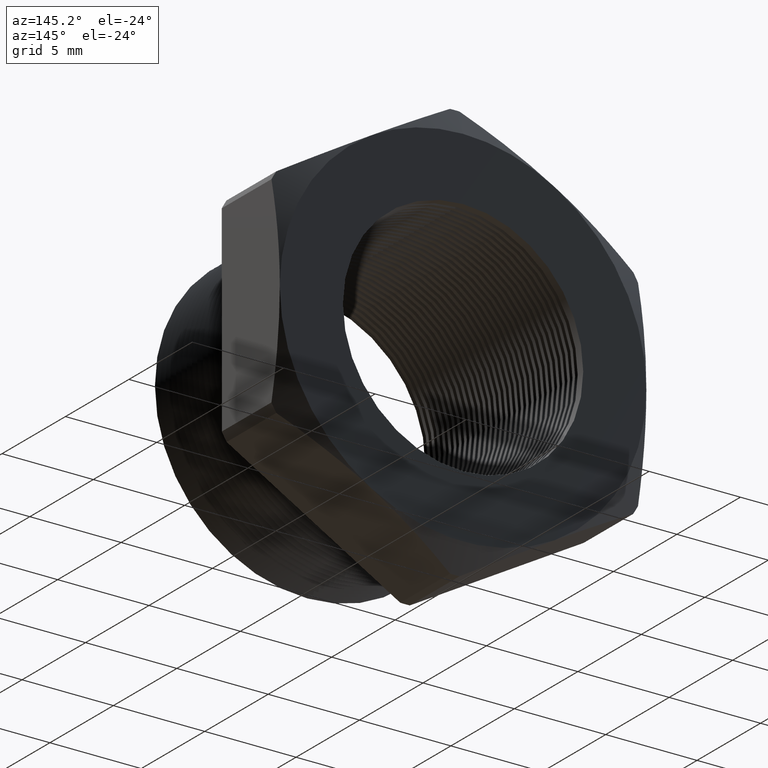
[diagram: clean part render]
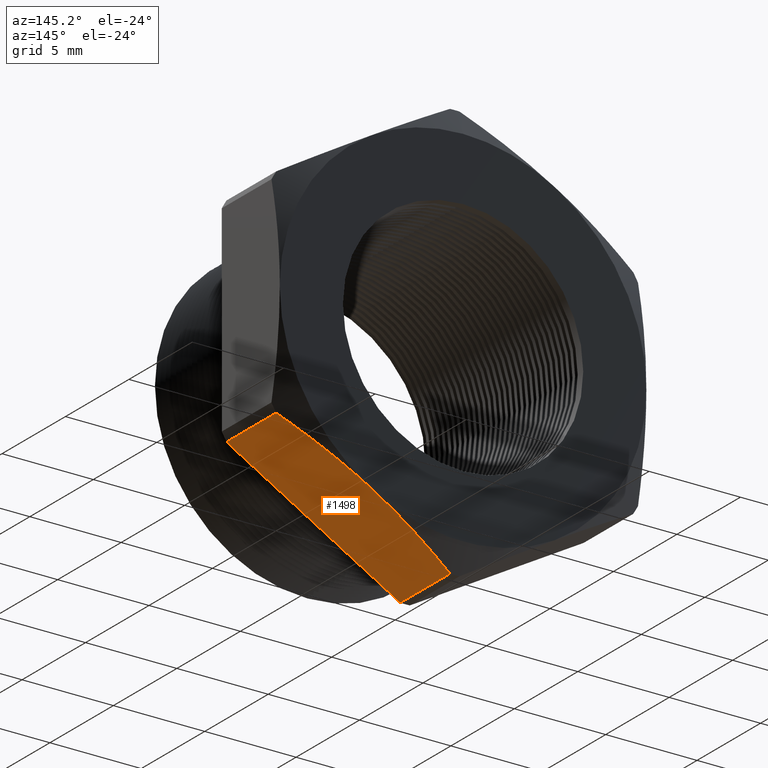
[diagram: same view with one face highlighted and labeled with its STEP entity id]
A machine part, auxiliary view. The second image highlights one B-rep face of the part: STEP entity #1498.
In plain terms, the highlighted planar face has unit normal (0.5, 0, -0.866).
Its self-contained STEP definition (entity closure, byte-faithful):
#1251 = EDGE_LOOP ( 'NONE', ( #1257, #1261, #6460, #6534, #6535 ) ) ;
#1257 = ORIENTED_EDGE ( 'NONE', *, *, #6494, .F. ) ;
#1261 = ORIENTED_EDGE ( 'NONE', *, *, #6463, .T. ) ;
#1498 = ADVANCED_FACE ( 'NONE', ( #3598 ), #3597, .T. ) ;
#3593 = DIRECTION ( 'NONE',  ( -0.8660254037844386000, 0.0000000000000000000, -0.4999999999999998300 ) ) ;
#3594 = DIRECTION ( 'NONE',  ( 0.4999999999999998900, 0.0000000000000000000, -0.8660254037844387100 ) ) ;
#3595 = CARTESIAN_POINT ( 'NONE',  ( 1.446412442642387900E-016, 0.4075548905829479700, -0.4561067126598043500 ) ) ;
#3596 = AXIS2_PLACEMENT_3D ( 'NONE', #3595, #3594, #3593 ) ;
#3597 = PLANE ( 'NONE',  #3596 ) ;
#3598 = FACE_OUTER_BOUND ( 'NONE', #1251, .T. ) ;
#3632 = B_SPLINE_CURVE_WITH_KNOTS ( 'NONE', 3,
 ( #3687, #3686, #3685, #3684, #3683, #3682 ),
 .UNSPECIFIED., .F., .F.,
 ( 4, 2, 4 ),
 ( 2.335025902591386300E-007, 0.002760212844509911800, 0.005520192186429564600 ),
 .UNSPECIFIED. ) ;
#3635 = CARTESIAN_POINT ( 'NONE',  ( 0.3847399997329629100, 0.3817680770869766300, -0.2339769702459618100 ) ) ;
#3636 = CARTESIAN_POINT ( 'NONE',  ( 0.3538644116588921000, 0.3897502881590466700, -0.2518029993319146300 ) ) ;
#3637 = CARTESIAN_POINT ( 'NONE',  ( 0.3227431943461728200, 0.3962764420413620300, -0.2697708425249218400 ) ) ;
#3638 = CARTESIAN_POINT ( 'NONE',  ( 0.2599588776186195800, 0.4052207272773963300, -0.3060193846884615700 ) ) ;
#3639 = CARTESIAN_POINT ( 'NONE',  ( 0.2286719793528691200, 0.4075548905829478600, -0.3240828838243009500 ) ) ;
#3640 = CARTESIAN_POINT ( 'NONE',  ( 0.1975000000000000100, 0.4075548905829479200, -0.3420800344948533600 ) ) ;
#3641 = B_SPLINE_CURVE_WITH_KNOTS ( 'NONE', 3,
 ( #3640, #3639, #3638, #3637, #3636, #3635 ),
 .UNSPECIFIED., .F., .F.,
 ( 4, 2, 4 ),
 ( 0.005520192186429564600, 0.008258536476824108300, 0.01099688076721865400 ),
 .UNSPECIFIED. ) ;
#3682 = CARTESIAN_POINT ( 'NONE',  ( 0.1975000000000000100, 0.4075548905829479200, -0.3420800344948533600 ) ) ;
#3683 = CARTESIAN_POINT ( 'NONE',  ( 0.1660817377447930100, 0.4075548905829479200, -0.3602193766653673000 ) ) ;
#3684 = CARTESIAN_POINT ( 'NONE',  ( 0.1347800776656142300, 0.4051865378565922500, -0.3782913985381633500 ) ) ;
#3685 = CARTESIAN_POINT ( 'NONE',  ( 0.07238150130182606500, 0.3962912005447678500, -0.4143172333988460700 ) ) ;
#3686 = CARTESIAN_POINT ( 'NONE',  ( 0.04128338948296789200, 0.3897884989263424300, -0.4322717366287527300 ) ) ;
#3687 = CARTESIAN_POINT ( 'NONE',  ( 0.01026000026703718100, 0.3817680770869766300, -0.4501830987437449000 ) ) ;
#3704 = CARTESIAN_POINT ( 'NONE',  ( 0.01026000026703718100, 0.3817680770869766300, -0.4501830987437449000 ) ) ;
#3747 = DIRECTION ( 'NONE',  ( -0.0000000000000000000, -1.000000000000000000, -0.0000000000000000000 ) ) ;
#3748 = VECTOR ( 'NONE', #3747, 39.37007874015748100 ) ;
#3749 = CARTESIAN_POINT ( 'NONE',  ( 0.01026000026703719400, 0.0000000000000000000, -0.4501830987437449000 ) ) ;
#3750 = LINE ( 'NONE', #3749, #3748 ) ;
#3751 = CARTESIAN_POINT ( 'NONE',  ( 0.01026000026703718400, 0.2275548905829479800, -0.4501830987437449000 ) ) ;
#3809 = DIRECTION ( 'NONE',  ( 0.8660254037844386000, 0.0000000000000000000, 0.4999999999999998300 ) ) ;
#3810 = VECTOR ( 'NONE', #3809, 39.37007874015748900 ) ;
#3811 = CARTESIAN_POINT ( 'NONE',  ( 0.4337499999999999700, 0.2275548905829479800, -0.2056810333988043100 ) ) ;
#3812 = LINE ( 'NONE', #3811, #3810 ) ;
#4044 = CARTESIAN_POINT ( 'NONE',  ( 0.1975000000000000100, 0.4075548905829479200, -0.3420800344948533600 ) ) ;
#4077 = CARTESIAN_POINT ( 'NONE',  ( 0.3847399997329628000, 0.2275548905829479800, -0.2339769702459618100 ) ) ;
#4078 = CARTESIAN_POINT ( 'NONE',  ( 0.3847399997329629100, 0.3817680770869766300, -0.2339769702459618100 ) ) ;
#4147 = DIRECTION ( 'NONE',  ( 0.0000000000000000000, 1.000000000000000000, 0.0000000000000000000 ) ) ;
#4148 = VECTOR ( 'NONE', #4147, 39.37007874015748100 ) ;
#4149 = CARTESIAN_POINT ( 'NONE',  ( 0.3847399997329628000, 0.0000000000000000000, -0.2339769702459618100 ) ) ;
#4150 = LINE ( 'NONE', #4149, #4148 ) ;
#6460 = ORIENTED_EDGE ( 'NONE', *, *, #6461, .T. ) ;
#6461 = EDGE_CURVE ( 'NONE', #6672, #6691, #3641, .T. ) ;
#6463 = EDGE_CURVE ( 'NONE', #6485, #6672, #3632, .T. ) ;
#6485 = VERTEX_POINT ( 'NONE', #3704 ) ;
#6493 = VERTEX_POINT ( 'NONE', #3751 ) ;
#6494 = EDGE_CURVE ( 'NONE', #6485, #6493, #3750, .T. ) ;
#6533 = EDGE_CURVE ( 'NONE', #6493, #6692, #3812, .T. ) ;
#6534 = ORIENTED_EDGE ( 'NONE', *, *, #6718, .F. ) ;
#6535 = ORIENTED_EDGE ( 'NONE', *, *, #6533, .F. ) ;
#6672 = VERTEX_POINT ( 'NONE', #4044 ) ;
#6691 = VERTEX_POINT ( 'NONE', #4078 ) ;
#6692 = VERTEX_POINT ( 'NONE', #4077 ) ;
#6718 = EDGE_CURVE ( 'NONE', #6692, #6691, #4150, .T. ) ;